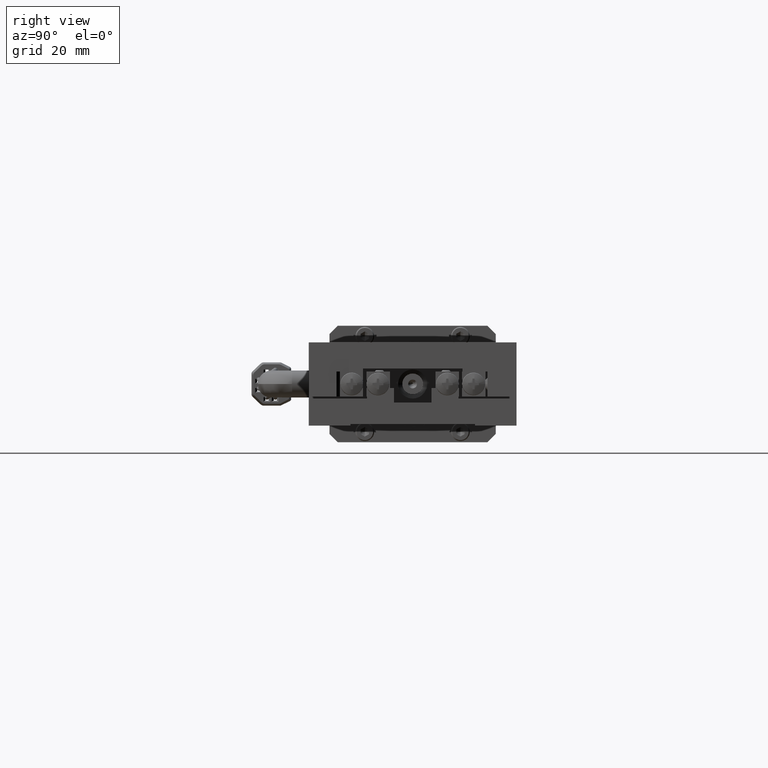
[diagram: clean part render]
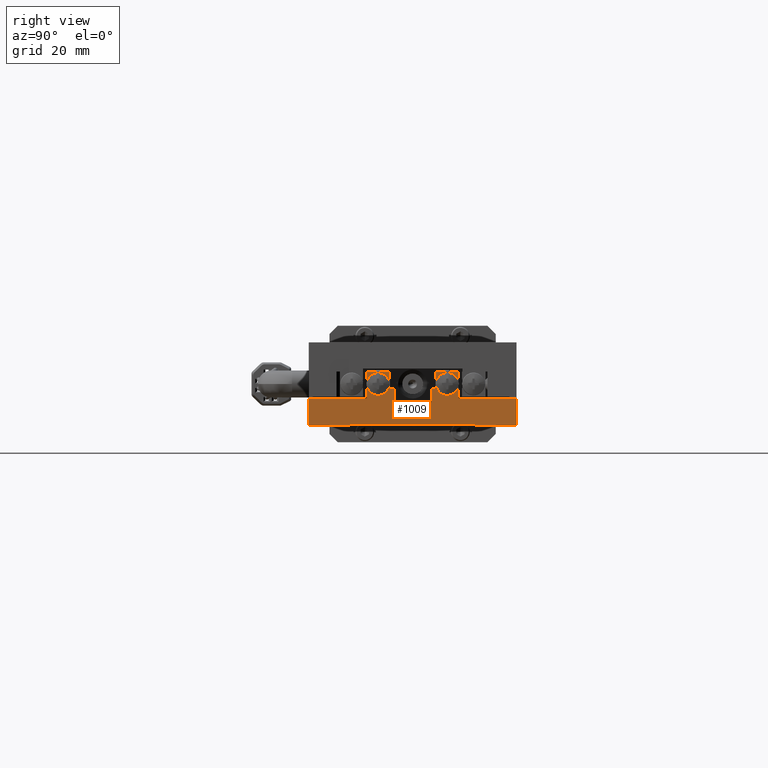
[diagram: same view with one face highlighted and labeled with its STEP entity id]
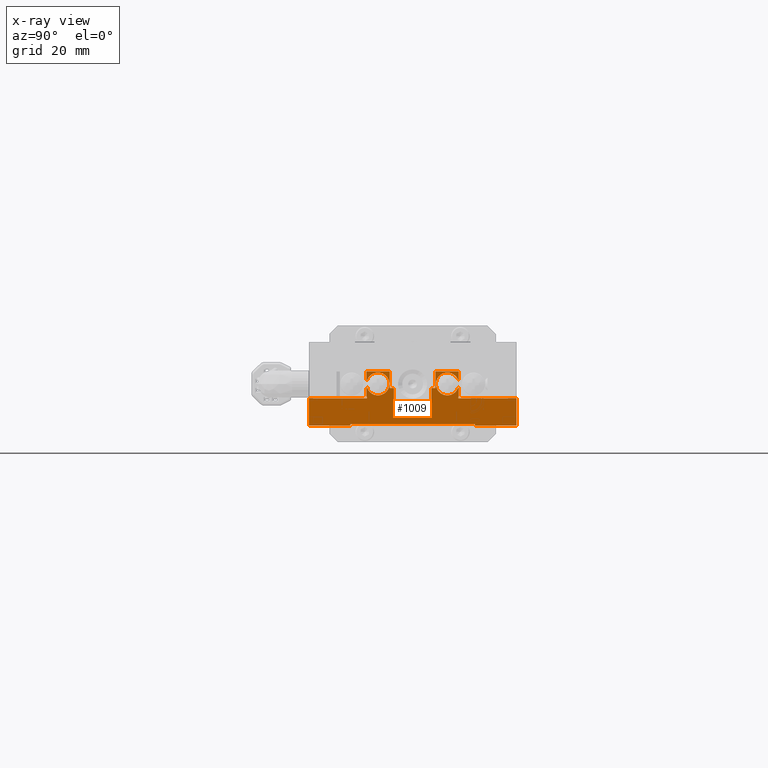
[diagram: x-ray of the same camera — body ghosted, the highlighted face saturated]
A machine part, right view. The second image highlights one B-rep face of the part: STEP entity #1009.
The next image is the same camera in x-ray: the body ghosted, the highlighted face saturated — about 0% of this face is hidden behind the body in this view.
In plain terms, the highlighted planar face has unit normal (-1, 0, 0).
Its self-contained STEP definition (entity closure, byte-faithful):
#1009=ADVANCED_FACE('',(#10132),#10131,.F.);
#10131=PLANE('',#30153);
#10132=FACE_OUTER_BOUND('',#30154,.T.);
#30150=CARTESIAN_POINT('',(2.50000000000E+001,-3.00000000000E+001,-1.44403216109E+000));
#30151=DIRECTION('',(-1.00000000000E+000,0.00000000000E+000,0.00000000000E+000));
#30152=DIRECTION('',(0.00000000000E+000,0.00000000000E+000,1.00000000000E+000));
#30153=AXIS2_PLACEMENT_3D('',#30150,#30151,#30152);
#30154=EDGE_LOOP('',(#44699,#44700,#44701,#44702,#44703,#44704,#44705,#44706,#44707,#44708,#44709,#44710,#44711,#44712,#44713,#44714,#44715,#44716,#44717,#44718,#44719,#44720,#44721,#44722,#44723,#44724,#44725,#44726,#44727,#44728,#44729,#44730,#44731,#44732));
#44699=ORIENTED_EDGE('',*,*,#53810,.T.);
#44700=ORIENTED_EDGE('',*,*,#53811,.F.);
#44701=ORIENTED_EDGE('',*,*,#53812,.F.);
#44702=ORIENTED_EDGE('',*,*,#53813,.F.);
#44703=ORIENTED_EDGE('',*,*,#53814,.F.);
#44704=ORIENTED_EDGE('',*,*,#53815,.F.);
#44705=ORIENTED_EDGE('',*,*,#53816,.F.);
#44706=ORIENTED_EDGE('',*,*,#53817,.F.);
#44707=ORIENTED_EDGE('',*,*,#53818,.F.);
#44708=ORIENTED_EDGE('',*,*,#53819,.F.);
#44709=ORIENTED_EDGE('',*,*,#53820,.T.);
#44710=ORIENTED_EDGE('',*,*,#53821,.T.);
#44711=ORIENTED_EDGE('',*,*,#53822,.T.);
#44712=ORIENTED_EDGE('',*,*,#53823,.T.);
#44713=ORIENTED_EDGE('',*,*,#53824,.T.);
#44714=ORIENTED_EDGE('',*,*,#53825,.T.);
#44715=ORIENTED_EDGE('',*,*,#53826,.T.);
#44716=ORIENTED_EDGE('',*,*,#53827,.T.);
#44717=ORIENTED_EDGE('',*,*,#53828,.T.);
#44718=ORIENTED_EDGE('',*,*,#53829,.F.);
#44719=ORIENTED_EDGE('',*,*,#53830,.F.);
#44720=ORIENTED_EDGE('',*,*,#53831,.T.);
#44721=ORIENTED_EDGE('',*,*,#53832,.T.);
#44722=ORIENTED_EDGE('',*,*,#53833,.T.);
#44723=ORIENTED_EDGE('',*,*,#53834,.T.);
#44724=ORIENTED_EDGE('',*,*,#53835,.F.);
#44725=ORIENTED_EDGE('',*,*,#53836,.T.);
#44726=ORIENTED_EDGE('',*,*,#53837,.T.);
#44727=ORIENTED_EDGE('',*,*,#53733,.T.);
#44728=ORIENTED_EDGE('',*,*,#53838,.T.);
#44729=ORIENTED_EDGE('',*,*,#53735,.F.);
#44730=ORIENTED_EDGE('',*,*,#53839,.T.);
#44731=ORIENTED_EDGE('',*,*,#53840,.T.);
#44732=ORIENTED_EDGE('',*,*,#53841,.F.);
#53733=EDGE_CURVE('',#69395,#69410,#69417,.T.);
#53735=EDGE_CURVE('',#69423,#69431,#69432,.T.);
#53810=EDGE_CURVE('',#69948,#69949,#69950,.T.);
#53811=EDGE_CURVE('',#69956,#69949,#69957,.T.);
#53812=EDGE_CURVE('',#69963,#69956,#69964,.T.);
#53813=EDGE_CURVE('',#69970,#69963,#69971,.T.);
#53814=EDGE_CURVE('',#69977,#69970,#69978,.T.);
#53815=EDGE_CURVE('',#69984,#69977,#69985,.T.);
#53816=EDGE_CURVE('',#69991,#69984,#69992,.T.);
#53817=EDGE_CURVE('',#69998,#69991,#69999,.T.);
#53818=EDGE_CURVE('',#70005,#69998,#70006,.T.);
#53819=EDGE_CURVE('',#70012,#70005,#70013,.T.);
#53820=EDGE_CURVE('',#70012,#70019,#70020,.T.);
#53821=EDGE_CURVE('',#70019,#70026,#70027,.T.);
#53822=EDGE_CURVE('',#70026,#70033,#70034,.T.);
#53823=EDGE_CURVE('',#70033,#70040,#70041,.T.);
#53824=EDGE_CURVE('',#70040,#70047,#70048,.T.);
#53825=EDGE_CURVE('',#70047,#70054,#70055,.T.);
#53826=EDGE_CURVE('',#70054,#70061,#70062,.T.);
#53827=EDGE_CURVE('',#70061,#70068,#70069,.T.);
#53828=EDGE_CURVE('',#70068,#70075,#70076,.T.);
#53829=EDGE_CURVE('',#70082,#70075,#70083,.T.);
#53830=EDGE_CURVE('',#70089,#70082,#70090,.T.);
#53831=EDGE_CURVE('',#70089,#70096,#70097,.T.);
#53832=EDGE_CURVE('',#70096,#70103,#70104,.T.);
#53833=EDGE_CURVE('',#70103,#70110,#70111,.T.);
#53834=EDGE_CURVE('',#70110,#70117,#70118,.T.);
#53835=EDGE_CURVE('',#70124,#70117,#70125,.T.);
#53836=EDGE_CURVE('',#70124,#70131,#70132,.T.);
#53837=EDGE_CURVE('',#70131,#69395,#70138,.T.);
#53838=EDGE_CURVE('',#69410,#69431,#70144,.T.);
#53839=EDGE_CURVE('',#69423,#70150,#70151,.T.);
#53840=EDGE_CURVE('',#70150,#70157,#70158,.T.);
#53841=EDGE_CURVE('',#69948,#70157,#70164,.T.);
#69395=VERTEX_POINT('',#99761);
#69410=VERTEX_POINT('',#99770);
#69417=LINE('',#99774,#99775);
#69423=VERTEX_POINT('',#99777);
#69431=VERTEX_POINT('',#99782);
#69432=LINE('',#99783,#99784);
#69948=VERTEX_POINT('',#100106);
#69949=VERTEX_POINT('',#100107);
#69950=LINE('',#100108,#100109);
#69956=VERTEX_POINT('',#100111);
#69957=LINE('',#100112,#100113);
#69963=VERTEX_POINT('',#100115);
#69964=LINE('',#100116,#100117);
#69970=VERTEX_POINT('',#100119);
#69971=LINE('',#100120,#100121);
#69977=VERTEX_POINT('',#100123);
#69978=CIRCLE('',#100127,2.75000000000E+000);
#69984=VERTEX_POINT('',#100128);
#69985=CIRCLE('',#100132,2.75000000000E+000);
#69991=VERTEX_POINT('',#100133);
#69992=LINE('',#100134,#100135);
#69998=VERTEX_POINT('',#100137);
#69999=LINE('',#100138,#100139);
#70005=VERTEX_POINT('',#100141);
#70006=LINE('',#100142,#100143);
#70012=VERTEX_POINT('',#100145);
#70013=LINE('',#100146,#100147);
#70019=VERTEX_POINT('',#100149);
#70020=LINE('',#100150,#100151);
#70026=VERTEX_POINT('',#100153);
#70027=LINE('',#100154,#100155);
#70033=VERTEX_POINT('',#100157);
#70034=LINE('',#100158,#100159);
#70040=VERTEX_POINT('',#100161);
#70041=LINE('',#100162,#100163);
#70047=VERTEX_POINT('',#100165);
#70048=LINE('',#100166,#100167);
#70054=VERTEX_POINT('',#100169);
#70055=LINE('',#100170,#100171);
#70061=VERTEX_POINT('',#100173);
#70062=LINE('',#100174,#100175);
#70068=VERTEX_POINT('',#100177);
#70069=LINE('',#100178,#100179);
#70075=VERTEX_POINT('',#100181);
#70076=LINE('',#100182,#100183);
#70082=VERTEX_POINT('',#100185);
#70083=CIRCLE('',#100189,2.75000000000E+000);
#70089=VERTEX_POINT('',#100190);
#70090=CIRCLE('',#100194,2.75000000000E+000);
#70096=VERTEX_POINT('',#100195);
#70097=LINE('',#100196,#100197);
#70103=VERTEX_POINT('',#100199);
#70104=LINE('',#100200,#100201);
#70110=VERTEX_POINT('',#100203);
#70111=LINE('',#100204,#100205);
#70117=VERTEX_POINT('',#100207);
#70118=LINE('',#100208,#100209);
#70124=VERTEX_POINT('',#100211);
#70125=LINE('',#100212,#100213);
#70131=VERTEX_POINT('',#100215);
#70132=LINE('',#100216,#100217);
#70138=LINE('',#100219,#100220);
#70144=LINE('',#100222,#100223);
#70150=VERTEX_POINT('',#100225);
#70151=LINE('',#100226,#100227);
#70157=VERTEX_POINT('',#100229);
#70158=LINE('',#100230,#100231);
#70164=LINE('',#100233,#100234);
#99761=CARTESIAN_POINT('',(2.50000000000E+001,-1.50000000000E+001,-3.63986965568E-012));
#99770=CARTESIAN_POINT('',(2.50000000000E+001,-1.50000000120E+001,3.00000000000E-001));
#99774=CARTESIAN_POINT('',(2.50000000000E+001,-1.50000000000E+001,-3.63986965568E-012));
#99775=VECTOR('',#99776,3.00000000004E-001);
#99776=DIRECTION('',(0.00000000000E+000,-3.98212781263E-008,1.00000000000E+000));
#99777=CARTESIAN_POINT('',(2.50000000000E+001,1.50000000000E+001,-3.63986965568E-012));
#99782=CARTESIAN_POINT('',(2.50000000000E+001,1.50000000119E+001,3.00000000000E-001));
#99783=CARTESIAN_POINT('',(2.50000000000E+001,1.50000000000E+001,-3.63986965568E-012));
#99784=VECTOR('',#99785,3.00000000004E-001);
#99785=DIRECTION('',(0.00000000000E+000,3.98212781263E-008,1.00000000000E+000));
#100106=CARTESIAN_POINT('',(2.50000000001E+001,1.10000000000E+001,6.50000000001E+000));
#100107=CARTESIAN_POINT('',(2.50000000000E+001,1.10000000000E+001,7.00000000000E+000));
#100108=CARTESIAN_POINT('',(2.50000000000E+001,1.10000000000E+001,6.50000000000E+000));
#100109=VECTOR('',#100110,4.99999999995E-001);
#100110=DIRECTION('',(0.00000000000E+000,0.00000000000E+000,1.00000000000E+000));
#100111=CARTESIAN_POINT('',(2.50000010001E+001,1.11000040000E+001,7.00000000000E+000));
#100112=CARTESIAN_POINT('',(2.50000010001E+001,1.11000040000E+001,7.00000000000E+000));
#100113=VECTOR('',#100114,1.00004000000E-001);
#100114=DIRECTION('',(0.00000000000E+000,-1.00000000000E+000,0.00000000000E+000));
#100115=CARTESIAN_POINT('',(2.50000010001E+001,1.11000040000E+001,8.98578750000E+000));
#100116=CARTESIAN_POINT('',(2.50000010001E+001,1.11000040000E+001,8.98578750000E+000));
#100117=VECTOR('',#100118,1.98578750000E+000);
#100118=DIRECTION('',(0.00000000000E+000,0.00000000000E+000,-1.00000000000E+000));
#100119=CARTESIAN_POINT('',(2.50000010001E+001,1.09580156882E+001,9.12777581184E+000));
#100120=CARTESIAN_POINT('',(2.50000010001E+001,1.09580156882E+001,9.12777581184E+000));
#100121=VECTOR('',#100122,2.00801796301E-001);
#100122=DIRECTION('',(0.00000000000E+000,7.07106781187E-001,-7.07106781187E-001));
#100123=CARTESIAN_POINT('',(2.50000010001E+001,5.60000400000E+000,1.00000000000E+001));
#100124=CARTESIAN_POINT('',(2.50000010001E+001,8.35000400000E+000,1.00000000000E+001));
#100125=DIRECTION('',(1.00000000000E+000,0.00000000000E+000,0.00000000000E+000));
#100126=DIRECTION('',(-0.00000000000E+000,1.00000000000E+000,-0.00000000000E+000));
#100127=AXIS2_PLACEMENT_3D('',#100124,#100125,#100126);
#100128=CARTESIAN_POINT('',(2.50000010001E+001,1.09580156882E+001,1.08722241882E+001));
#100129=CARTESIAN_POINT('',(2.50000010001E+001,8.35000400000E+000,1.00000000000E+001));
#100130=DIRECTION('',(1.00000000000E+000,0.00000000000E+000,0.00000000000E+000));
#100131=DIRECTION('',(-0.00000000000E+000,1.00000000000E+000,-0.00000000000E+000));
#100132=AXIS2_PLACEMENT_3D('',#100129,#100130,#100131);
#100133=CARTESIAN_POINT('',(2.50000010001E+001,1.11000040000E+001,1.10142125000E+001));
#100134=CARTESIAN_POINT('',(2.50000010001E+001,1.11000040000E+001,1.10142125000E+001));
#100135=VECTOR('',#100136,2.00801796301E-001);
#100136=DIRECTION('',(0.00000000000E+000,-7.07106781187E-001,-7.07106781187E-001));
#100137=CARTESIAN_POINT('',(2.50000010001E+001,1.11000040000E+001,1.30000000000E+001));
#100138=CARTESIAN_POINT('',(2.50000010001E+001,1.11000040000E+001,1.30000000000E+001));
#100139=VECTOR('',#100140,1.98578750000E+000);
#100140=DIRECTION('',(0.00000000000E+000,0.00000000000E+000,-1.00000000000E+000));
#100141=CARTESIAN_POINT('',(2.50000010001E+001,5.50000400000E+000,1.30000000000E+001));
#100142=CARTESIAN_POINT('',(2.50000010001E+001,5.50000400000E+000,1.30000000000E+001));
#100143=VECTOR('',#100144,5.60000000000E+000);
#100144=DIRECTION('',(0.00000000000E+000,1.00000000000E+000,0.00000000000E+000));
#100145=CARTESIAN_POINT('',(2.50000010001E+001,5.50000400000E+000,9.00000000000E+000));
#100146=CARTESIAN_POINT('',(2.50000010001E+001,5.50000400000E+000,9.00000000000E+000));
#100147=VECTOR('',#100148,4.00000000000E+000);
#100148=DIRECTION('',(0.00000000000E+000,0.00000000000E+000,1.00000000000E+000));
#100149=CARTESIAN_POINT('',(2.50000000000E+001,4.50000000000E+000,9.00000000000E+000));
#100150=CARTESIAN_POINT('',(2.50000000000E+001,5.50000400000E+000,9.00000000000E+000));
#100151=VECTOR('',#100152,1.00000400000E+000);
#100152=DIRECTION('',(0.00000000000E+000,-1.00000000000E+000,0.00000000000E+000));
#100153=CARTESIAN_POINT('',(2.50000000000E+001,4.50000000000E+000,5.50000000000E+000));
#100154=CARTESIAN_POINT('',(2.50000000000E+001,4.50000000000E+000,9.00000000000E+000));
#100155=VECTOR('',#100156,3.50000000000E+000);
#100156=DIRECTION('',(0.00000000000E+000,0.00000000000E+000,-1.00000000000E+000));
#100157=CARTESIAN_POINT('',(2.50000000000E+001,-4.50000000000E+000,5.50000000000E+000));
#100158=CARTESIAN_POINT('',(2.50000000000E+001,4.50000000000E+000,5.50000000000E+000));
#100159=VECTOR('',#100160,9.00000000000E+000);
#100160=DIRECTION('',(0.00000000000E+000,-1.00000000000E+000,0.00000000000E+000));
#100161=CARTESIAN_POINT('',(2.50000000000E+001,-4.50000000000E+000,9.00000000000E+000));
#100162=CARTESIAN_POINT('',(2.50000000000E+001,-4.50000000000E+000,5.50000000000E+000));
#100163=VECTOR('',#100164,3.50000000000E+000);
#100164=DIRECTION('',(0.00000000000E+000,0.00000000000E+000,1.00000000000E+000));
#100165=CARTESIAN_POINT('',(2.50000000000E+001,-5.50000000000E+000,9.00000000000E+000));
#100166=CARTESIAN_POINT('',(2.50000000000E+001,-4.50000000000E+000,9.00000000000E+000));
#100167=VECTOR('',#100168,1.00000000000E+000);
#100168=DIRECTION('',(0.00000000000E+000,-1.00000000000E+000,0.00000000000E+000));
#100169=CARTESIAN_POINT('',(2.50000000000E+001,-5.50000000000E+000,1.30000000000E+001));
#100170=CARTESIAN_POINT('',(2.50000000000E+001,-5.50000000000E+000,9.00000000000E+000));
#100171=VECTOR('',#100172,4.00000000000E+000);
#100172=DIRECTION('',(0.00000000000E+000,0.00000000000E+000,1.00000000000E+000));
#100173=CARTESIAN_POINT('',(2.50000000000E+001,-1.11000000000E+001,1.30000000000E+001));
#100174=CARTESIAN_POINT('',(2.50000000000E+001,-5.50000000000E+000,1.30000000000E+001));
#100175=VECTOR('',#100176,5.60000000000E+000);
#100176=DIRECTION('',(0.00000000000E+000,-1.00000000000E+000,0.00000000000E+000));
#100177=CARTESIAN_POINT('',(2.50000000000E+001,-1.11000000000E+001,1.10142125000E+001));
#100178=CARTESIAN_POINT('',(2.50000000000E+001,-1.11000000000E+001,1.30000000000E+001));
#100179=VECTOR('',#100180,1.98578750000E+000);
#100180=DIRECTION('',(0.00000000000E+000,0.00000000000E+000,-1.00000000000E+000));
#100181=CARTESIAN_POINT('',(2.50000000000E+001,-1.09580116882E+001,1.08722241882E+001));
#100182=CARTESIAN_POINT('',(2.50000000000E+001,-1.11000000000E+001,1.10142125000E+001));
#100183=VECTOR('',#100184,2.00801796301E-001);
#100184=DIRECTION('',(0.00000000000E+000,7.07106781187E-001,-7.07106781187E-001));
#100185=CARTESIAN_POINT('',(2.50000000000E+001,-5.60000000000E+000,1.00000000000E+001));
#100186=CARTESIAN_POINT('',(2.50000000000E+001,-8.35000000000E+000,1.00000000000E+001));
#100187=DIRECTION('',(1.00000000000E+000,0.00000000000E+000,0.00000000000E+000));
#100188=DIRECTION('',(0.00000000000E+000,-9.48367886604E-001,-3.17172432059E-001));
#100189=AXIS2_PLACEMENT_3D('',#100186,#100187,#100188);
#100190=CARTESIAN_POINT('',(2.50000000000E+001,-1.09580116882E+001,9.12777581184E+000));
#100191=CARTESIAN_POINT('',(2.50000000000E+001,-8.35000000000E+000,1.00000000000E+001));
#100192=DIRECTION('',(1.00000000000E+000,0.00000000000E+000,0.00000000000E+000));
#100193=DIRECTION('',(0.00000000000E+000,-9.48367886604E-001,-3.17172432059E-001));
#100194=AXIS2_PLACEMENT_3D('',#100191,#100192,#100193);
#100195=CARTESIAN_POINT('',(2.50000000000E+001,-1.11000000000E+001,8.98578750000E+000));
#100196=CARTESIAN_POINT('',(2.50000000000E+001,-1.09580116882E+001,9.12777581184E+000));
#100197=VECTOR('',#100198,2.00801796301E-001);
#100198=DIRECTION('',(0.00000000000E+000,-7.07106781187E-001,-7.07106781187E-001));
#100199=CARTESIAN_POINT('',(2.50000000000E+001,-1.11000000000E+001,7.00000000000E+000));
#100200=CARTESIAN_POINT('',(2.50000000000E+001,-1.11000000000E+001,8.98578750000E+000));
#100201=VECTOR('',#100202,1.98578750000E+000);
#100202=DIRECTION('',(0.00000000000E+000,0.00000000000E+000,-1.00000000000E+000));
#100203=CARTESIAN_POINT('',(2.50000000000E+001,-1.10000000000E+001,7.00000000000E+000));
#100204=CARTESIAN_POINT('',(2.50000000000E+001,-1.11000000000E+001,7.00000000000E+000));
#100205=VECTOR('',#100206,1.00000000000E-001);
#100206=DIRECTION('',(0.00000000000E+000,1.00000000000E+000,0.00000000000E+000));
#100207=CARTESIAN_POINT('',(2.50000000001E+001,-1.10000000000E+001,6.50000000001E+000));
#100208=CARTESIAN_POINT('',(2.50000000000E+001,-1.10000000000E+001,7.00000000000E+000));
#100209=VECTOR('',#100210,4.99999999995E-001);
#100210=DIRECTION('',(0.00000000000E+000,0.00000000000E+000,-1.00000000000E+000));
#100211=CARTESIAN_POINT('',(2.50000000001E+001,-2.50000000000E+001,6.50000000001E+000));
#100212=CARTESIAN_POINT('',(2.50000000001E+001,-2.50000000000E+001,6.50000000001E+000));
#100213=VECTOR('',#100214,1.40000000000E+001);
#100214=DIRECTION('',(0.00000000000E+000,1.00000000000E+000,0.00000000000E+000));
#100215=CARTESIAN_POINT('',(2.50000000000E+001,-2.50000000000E+001,-1.72084568817E-015));
#100216=CARTESIAN_POINT('',(2.50000000000E+001,-2.50000000000E+001,6.50000000000E+000));
#100217=VECTOR('',#100218,6.50000000001E+000);
#100218=DIRECTION('',(0.00000000000E+000,0.00000000000E+000,-1.00000000000E+000));
#100219=CARTESIAN_POINT('',(2.50000000000E+001,-2.50000000000E+001,-1.72084568817E-015));
#100220=VECTOR('',#100221,9.99999999998E+000);
#100221=DIRECTION('',(0.00000000000E+000,1.00000000000E+000,0.00000000000E+000));
#100222=CARTESIAN_POINT('',(2.50000000000E+001,-1.50000000120E+001,3.00000000000E-001));
#100223=VECTOR('',#100224,3.00000000239E+001);
#100224=DIRECTION('',(0.00000000000E+000,1.00000000000E+000,0.00000000000E+000));
#100225=CARTESIAN_POINT('',(2.50000000000E+001,2.50000000000E+001,-1.72084568817E-015));
#100226=CARTESIAN_POINT('',(2.50000000000E+001,1.50000000000E+001,-1.72084568817E-015));
#100227=VECTOR('',#100228,1.00000000000E+001);
#100228=DIRECTION('',(0.00000000000E+000,1.00000000000E+000,0.00000000000E+000));
#100229=CARTESIAN_POINT('',(2.50000000001E+001,2.50000000000E+001,6.50000000001E+000));
#100230=CARTESIAN_POINT('',(2.50000000000E+001,2.50000000000E+001,-1.72084568817E-015));
#100231=VECTOR('',#100232,6.50000000001E+000);
#100232=DIRECTION('',(0.00000000000E+000,0.00000000000E+000,1.00000000000E+000));
#100233=CARTESIAN_POINT('',(2.50000000001E+001,1.10000000000E+001,6.50000000001E+000));
#100234=VECTOR('',#100235,1.40000000000E+001);
#100235=DIRECTION('',(0.00000000000E+000,1.00000000000E+000,0.00000000000E+000));